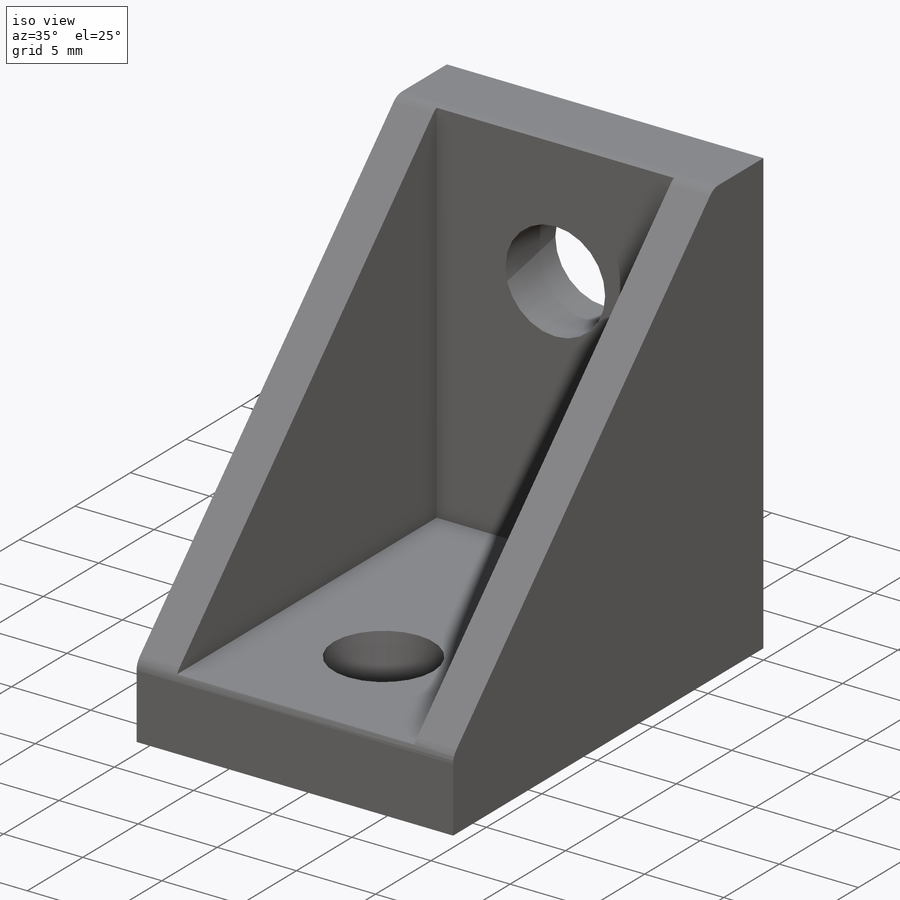
[diagram: iso view]
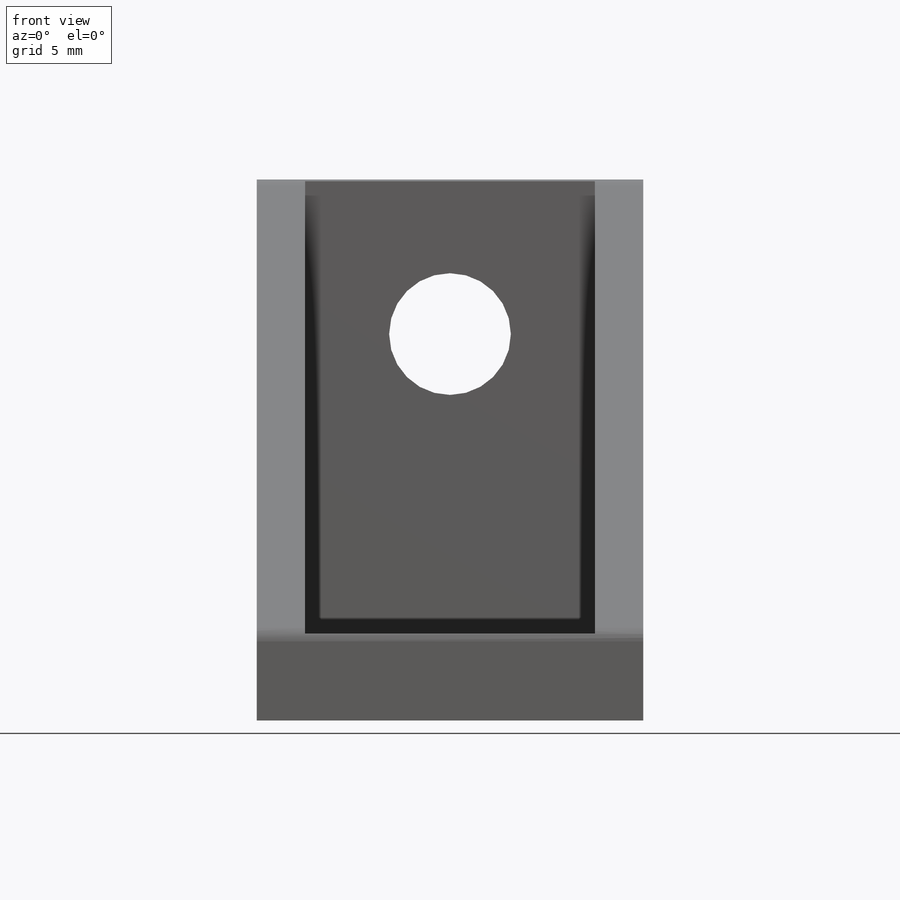
[diagram: front view]
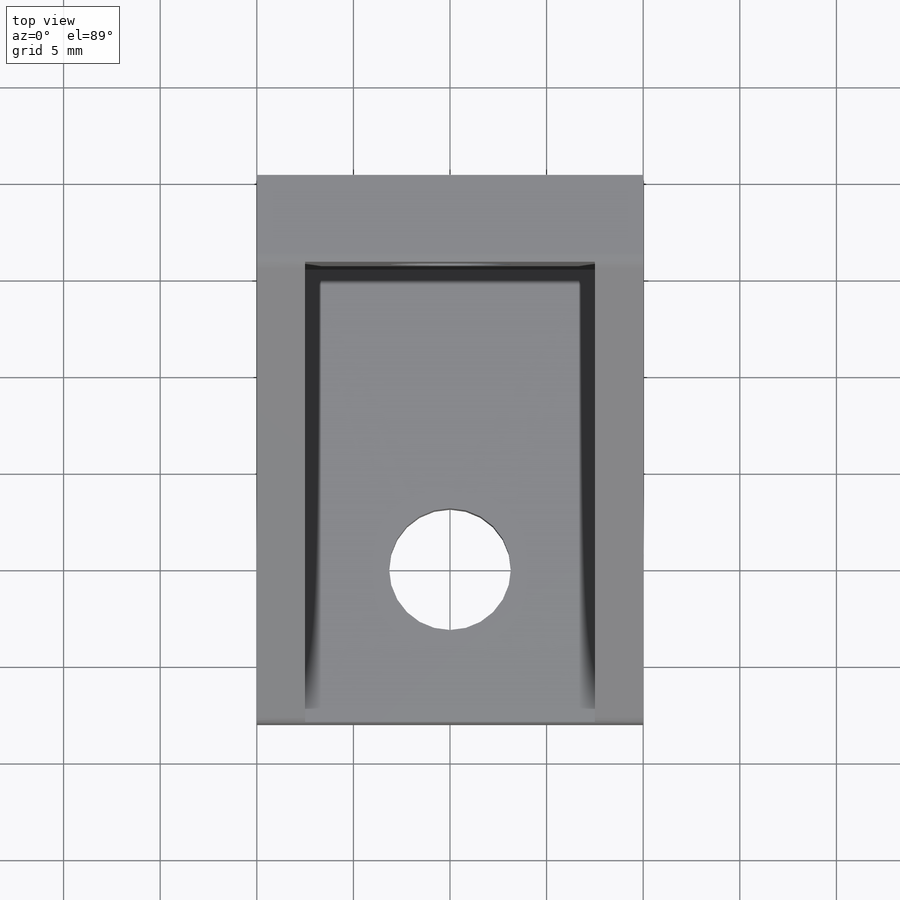
[diagram: top view]
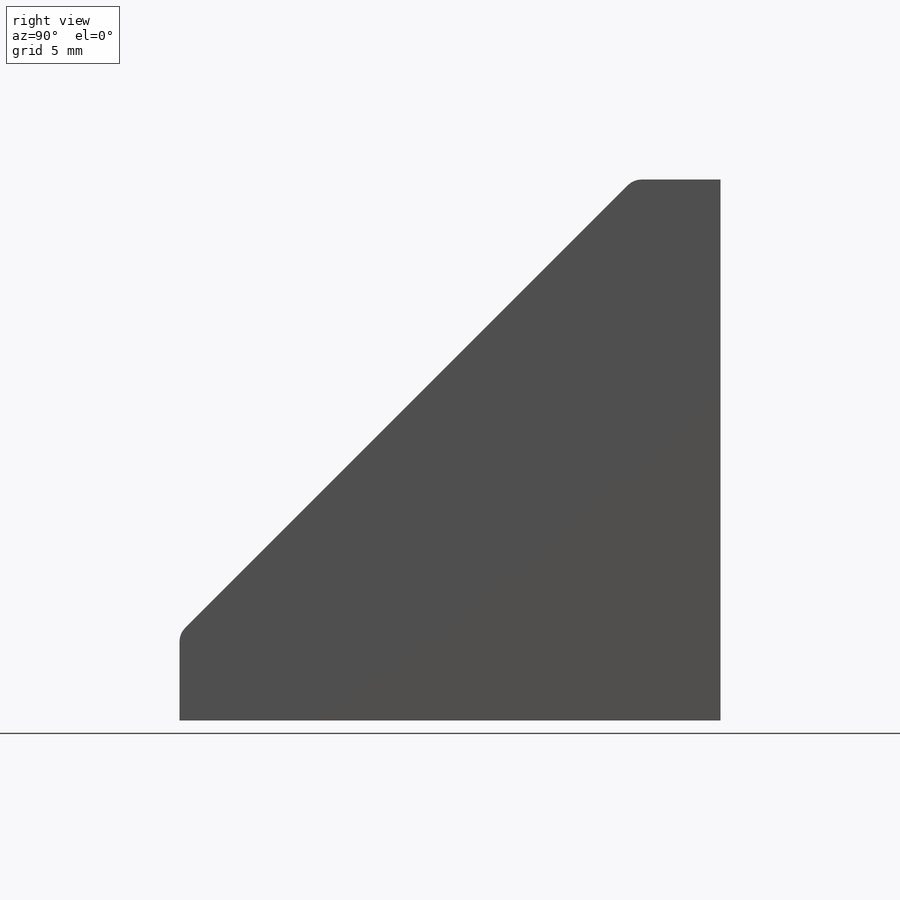
[diagram: right view]
SOLIDWORKS PART (.sldprt)
format: sldprt  version: not decoded by parser v0  size: 227,328 bytes
history: native  units: mm
features: sketch x8, plane x5, extrude x3, hole x2, material x1, cut_extrude x1, fillet x1 (+9 scaffold rows collapsed)
feature tree (30):
  scaffold x9  (default folders/planes/origin — collapsed)
  material  "Material <not specified>"
  plane  "Piano frontale"
  plane  "Piano superiore"
  plane  "Piano destro"
  plane  "Plane1"
  sketch  "Sketch1"
  extrude  "Boss-Extrude1"  Depth=20mm
  sketch  "Sketch2"
  extrude  "Boss-Extrude2"  Depth=4.5mm
  plane  "Plane2"  Offset=2.5mm
  sketch  "Sketch3"
  cut_extrude  "Cut-Extrude1"  Depth=15mm
  sketch  "Sketch4"
  extrude  "Boss-Extrude3"  Depth=4.5mm
  hole  "Ø6.3 (6.3) Diameter Hole1"  Diameter=6.3mm Depth=28mm
  sketch  "Sketch10"
  sketch  "Sketch9"  dims[hole-wizard template sketch: 59 standard entries collapsed; hole parameters kept: c18.Thru Hole Dia.=6.3mm c18.Thru Hole Depth=28.0mm]
  hole  "Ø6.3 (6.3) Diameter Hole2"  Diameter=6.3mm Depth=4.5mm
  sketch  "Sketch12"
  sketch  "Sketch11"  dims[hole-wizard template sketch: 59 standard entries collapsed; hole parameters kept: c18.Thru Hole Dia.=6.3mm c18.Thru Hole Depth=4.5mm]
  fillet  "Fillet2"  Radius=1mm
decode coverage: 9 of 15 modeling features carry decoded parameters
note: ~ marks probable driven/reference dimensions
note: suppression state not decoded; provenance and decode notes live in map.json
